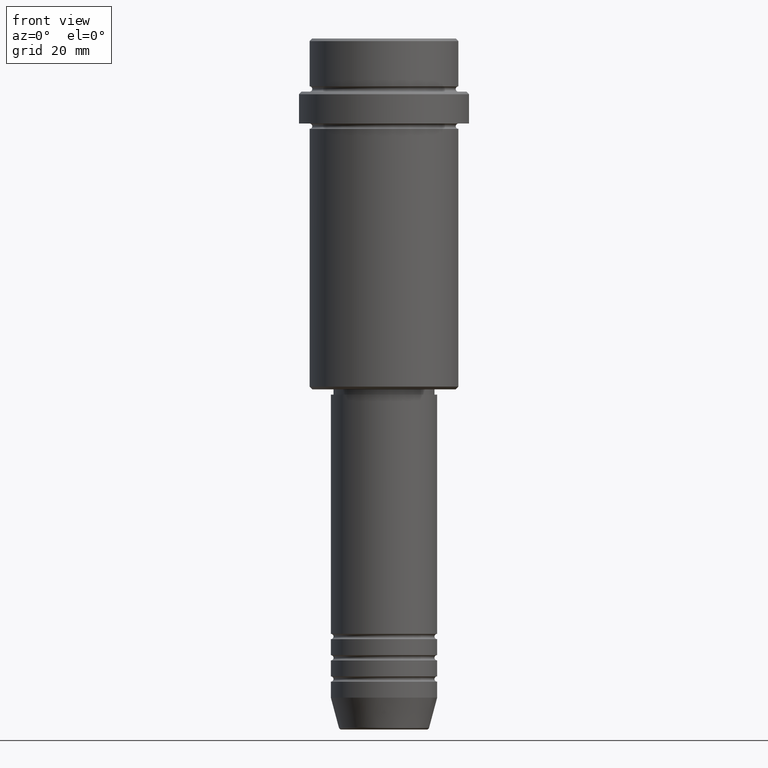
[diagram: clean part render]
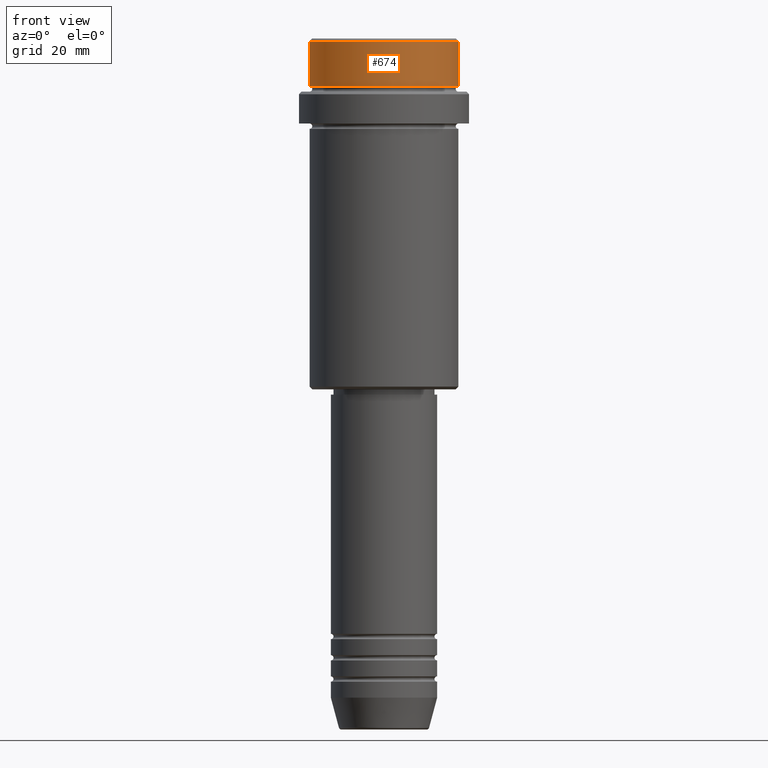
[diagram: same view with one face highlighted and labeled with its STEP entity id]
A machine part, front view. The second image highlights one B-rep face of the part: STEP entity #674.
In plain terms, the highlighted cylindrical surface (partial cylindrical patch) has radius 14 mm, axis along (-0, -0, 1).
Its self-contained STEP definition (entity closure, byte-faithful):
#89 = VECTOR ( 'NONE', #542, 1000.000000000000000 ) ;
#104 = LINE ( 'NONE', #231, #89 ) ;
#123 = EDGE_CURVE ( 'NONE', #751, #1296, #694, .T. ) ;
#190 = CARTESIAN_POINT ( 'NONE',  ( 0.000000000000000000, 0.000000000000000000, 0.000000000000000000 ) ) ;
#231 = CARTESIAN_POINT ( 'NONE',  ( -13.99999999999999467, 1.714505518806294046E-15, 0.000000000000000000 ) ) ;
#345 = EDGE_CURVE ( 'NONE', #1207, #1136, #104, .T. ) ;
#397 = DIRECTION ( 'NONE',  ( 0.000000000000000000, 0.000000000000000000, -1.000000000000000000 ) ) ;
#436 = CIRCLE ( 'NONE', #616, 13.99999999999999467 ) ;
#534 = CARTESIAN_POINT ( 'NONE',  ( 0.000000000000000000, 0.000000000000000000, -8.999999999999998224 ) ) ;
#535 = CARTESIAN_POINT ( 'NONE',  ( 13.99999999999998757, 0.000000000000000000, -8.999999999999998224 ) ) ;
#542 = DIRECTION ( 'NONE',  ( -0.000000000000000000, -0.000000000000000000, 1.000000000000000000 ) ) ;
#554 = ORIENTED_EDGE ( 'NONE', *, *, #123, .T. ) ;
#581 = DIRECTION ( 'NONE',  ( -0.000000000000000000, -0.000000000000000000, 1.000000000000000000 ) ) ;
#606 = EDGE_CURVE ( 'NONE', #1296, #1136, #436, .T. ) ;
#616 = AXIS2_PLACEMENT_3D ( 'NONE', #846, #397, #853 ) ;
#624 = CYLINDRICAL_SURFACE ( 'NONE', #1391, 13.99999999999999467 ) ;
#629 = DIRECTION ( 'NONE',  ( -0.000000000000000000, -0.000000000000000000, 1.000000000000000000 ) ) ;
#645 = ORIENTED_EDGE ( 'NONE', *, *, #345, .F. ) ;
#674 = ADVANCED_FACE ( 'NONE', ( #832 ), #624, .T. ) ;
#694 = LINE ( 'NONE', #1129, #1185 ) ;
#751 = VERTEX_POINT ( 'NONE', #535 ) ;
#789 = ORIENTED_EDGE ( 'NONE', *, *, #606, .T. ) ;
#803 = CIRCLE ( 'NONE', #990, 13.99999999999998757 ) ;
#832 = FACE_OUTER_BOUND ( 'NONE', #948, .T. ) ;
#846 = CARTESIAN_POINT ( 'NONE',  ( 0.000000000000000000, 0.000000000000000000, -0.4999999999999900080 ) ) ;
#853 = DIRECTION ( 'NONE',  ( 1.000000000000000000, 0.000000000000000000, 0.000000000000000000 ) ) ;
#919 = ORIENTED_EDGE ( 'NONE', *, *, #1286, .T. ) ;
#948 = EDGE_LOOP ( 'NONE', ( #645, #919, #554, #789 ) ) ;
#971 = DIRECTION ( 'NONE',  ( -0.000000000000000000, -0.000000000000000000, 1.000000000000000000 ) ) ;
#976 = CARTESIAN_POINT ( 'NONE',  ( 13.99999999999999467, 0.000000000000000000, -0.4999999999999900080 ) ) ;
#990 = AXIS2_PLACEMENT_3D ( 'NONE', #534, #971, #1091 ) ;
#1068 = DIRECTION ( 'NONE',  ( 1.000000000000000000, 0.000000000000000000, 0.000000000000000000 ) ) ;
#1091 = DIRECTION ( 'NONE',  ( 1.000000000000000000, 0.000000000000000000, 0.000000000000000000 ) ) ;
#1129 = CARTESIAN_POINT ( 'NONE',  ( 13.99999999999999467, 0.000000000000000000, 0.000000000000000000 ) ) ;
#1136 = VERTEX_POINT ( 'NONE', #1363 ) ;
#1185 = VECTOR ( 'NONE', #581, 1000.000000000000000 ) ;
#1207 = VERTEX_POINT ( 'NONE', #1301 ) ;
#1286 = EDGE_CURVE ( 'NONE', #1207, #751, #803, .T. ) ;
#1296 = VERTEX_POINT ( 'NONE', #976 ) ;
#1301 = CARTESIAN_POINT ( 'NONE',  ( -13.99999999999998757, 1.714505518806293652E-15, -8.999999999999998224 ) ) ;
#1363 = CARTESIAN_POINT ( 'NONE',  ( -13.99999999999999467, 1.714505518806294046E-15, -0.4999999999999900080 ) ) ;
#1391 = AXIS2_PLACEMENT_3D ( 'NONE', #190, #629, #1068 ) ;